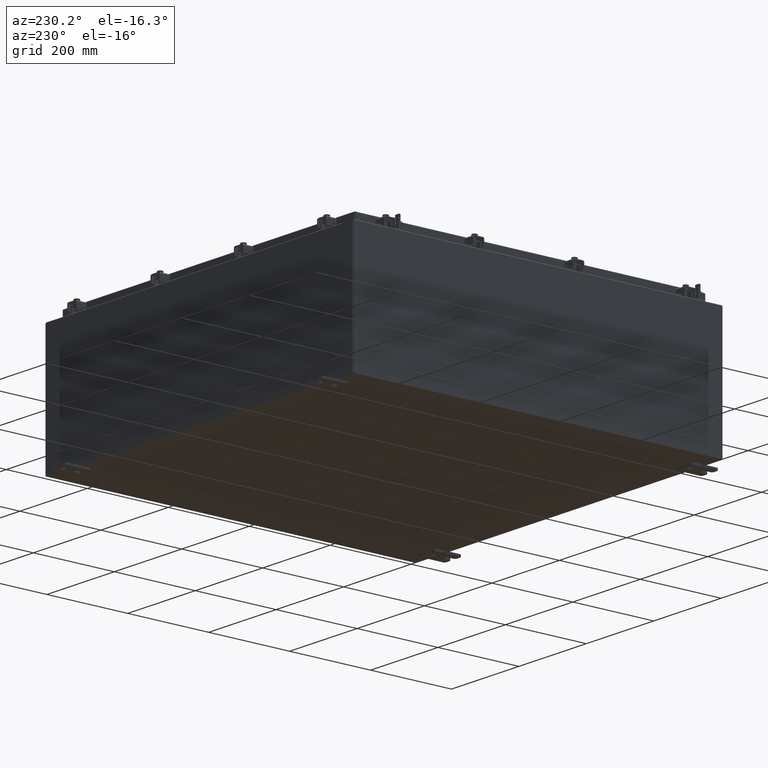
[diagram: clean part render]
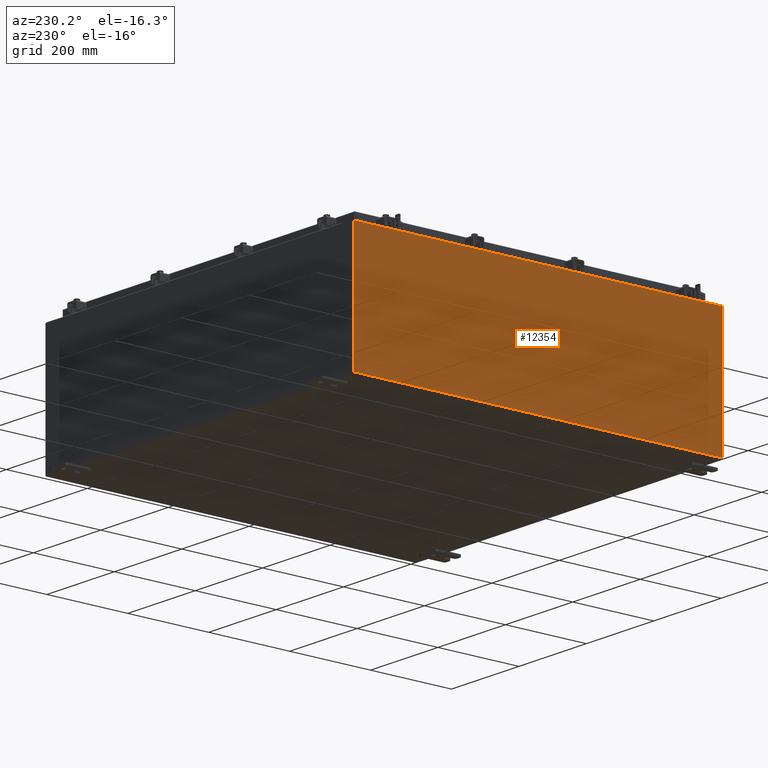
[diagram: same view with one face highlighted and labeled with its STEP entity id]
A machine part, auxiliary view. The second image highlights one B-rep face of the part: STEP entity #12354.
In plain terms, the highlighted planar face has unit normal (1, 0, 0).
Its self-contained STEP definition (entity closure, byte-faithful):
#507 = EDGE_CURVE ( 'NONE', #17824, #12787, #15159, .T. ) ;
#992 = VERTEX_POINT ( 'NONE', #26922 ) ;
#2919 = DIRECTION ( 'NONE',  ( 3.482016343714355100E-015, 0.0000000000000000000, -1.000000000000000000 ) ) ;
#3066 = CARTESIAN_POINT ( 'NONE',  ( -18.00000000000000000, 17.92530000000000000, -6.293710784286997500E-014 ) ) ;
#4962 = CARTESIAN_POINT ( 'NONE',  ( -18.00000000000000000, 0.0000000000000000000, -6.293710784286997500E-014 ) ) ;
#5974 = DIRECTION ( 'NONE',  ( -3.482016343714355500E-015, 0.0000000000000000000, 1.000000000000000000 ) ) ;
#6372 = AXIS2_PLACEMENT_3D ( 'NONE', #4962, #15576, #2919 ) ;
#6590 = CARTESIAN_POINT ( 'NONE',  ( -18.00000000000004300, -17.92530000000000000, 11.83760000000000200 ) ) ;
#6665 = VECTOR ( 'NONE', #15732, 39.37007874015748100 ) ;
#6974 = EDGE_CURVE ( 'NONE', #992, #7641, #16348, .T. ) ;
#7641 = VERTEX_POINT ( 'NONE', #16428 ) ;
#9128 = ORIENTED_EDGE ( 'NONE', *, *, #16575, .T. ) ;
#10666 = ORIENTED_EDGE ( 'NONE', *, *, #507, .T. ) ;
#11337 = PLANE ( 'NONE',  #6372 ) ;
#11849 = EDGE_LOOP ( 'NONE', ( #10666, #9128, #25095, #14623 ) ) ;
#12354 = ADVANCED_FACE ( 'NONE', ( #22959 ), #11337, .F. ) ;
#12787 = VERTEX_POINT ( 'NONE', #18432 ) ;
#12941 = LINE ( 'NONE', #22893, #24753 ) ;
#13174 = VECTOR ( 'NONE', #19236, 39.37007874015748100 ) ;
#14623 = ORIENTED_EDGE ( 'NONE', *, *, #15675, .T. ) ;
#15159 = LINE ( 'NONE', #6590, #13174 ) ;
#15576 = DIRECTION ( 'NONE',  ( 1.000000000000000000, 0.0000000000000000000, 3.482016343714355100E-015 ) ) ;
#15675 = EDGE_CURVE ( 'NONE', #992, #17824, #12941, .T. ) ;
#15687 = VECTOR ( 'NONE', #26849, 39.37007874015748100 ) ;
#15732 = DIRECTION ( 'NONE',  ( 3.482016343714355500E-015, 0.0000000000000000000, -1.000000000000000000 ) ) ;
#16348 = LINE ( 'NONE', #22664, #15687 ) ;
#16428 = CARTESIAN_POINT ( 'NONE',  ( -18.00000000000000000, 17.92530000000000000, 0.01299999999999984700 ) ) ;
#16575 = EDGE_CURVE ( 'NONE', #12787, #7641, #17897, .T. ) ;
#17824 = VERTEX_POINT ( 'NONE', #25985 ) ;
#17897 = LINE ( 'NONE', #3066, #6665 ) ;
#18432 = CARTESIAN_POINT ( 'NONE',  ( -18.00000000000004300, 17.92530000000000000, 11.83760000000000200 ) ) ;
#19236 = DIRECTION ( 'NONE',  ( 0.0000000000000000000, 1.000000000000000000, 0.0000000000000000000 ) ) ;
#22664 = CARTESIAN_POINT ( 'NONE',  ( -18.00000000000000000, 17.92530000000000000, 0.01299999999999984700 ) ) ;
#22893 = CARTESIAN_POINT ( 'NONE',  ( -18.00000000000000000, -17.92530000000000000, -6.293710784286997500E-014 ) ) ;
#22959 = FACE_OUTER_BOUND ( 'NONE', #11849, .T. ) ;
#24753 = VECTOR ( 'NONE', #5974, 39.37007874015748100 ) ;
#25095 = ORIENTED_EDGE ( 'NONE', *, *, #6974, .F. ) ;
#25985 = CARTESIAN_POINT ( 'NONE',  ( -18.00000000000004300, -17.92530000000000000, 11.83760000000000200 ) ) ;
#26849 = DIRECTION ( 'NONE',  ( -0.0000000000000000000, 1.000000000000000000, -0.0000000000000000000 ) ) ;
#26922 = CARTESIAN_POINT ( 'NONE',  ( -18.00000000000000000, -17.92530000000000000, 0.01299999999999984700 ) ) ;